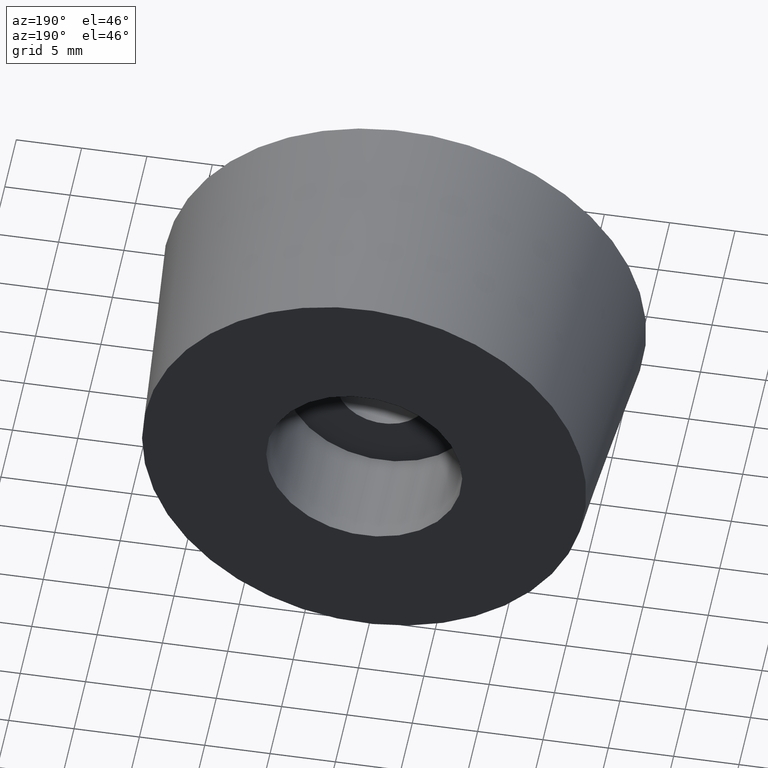
[diagram: clean part render]
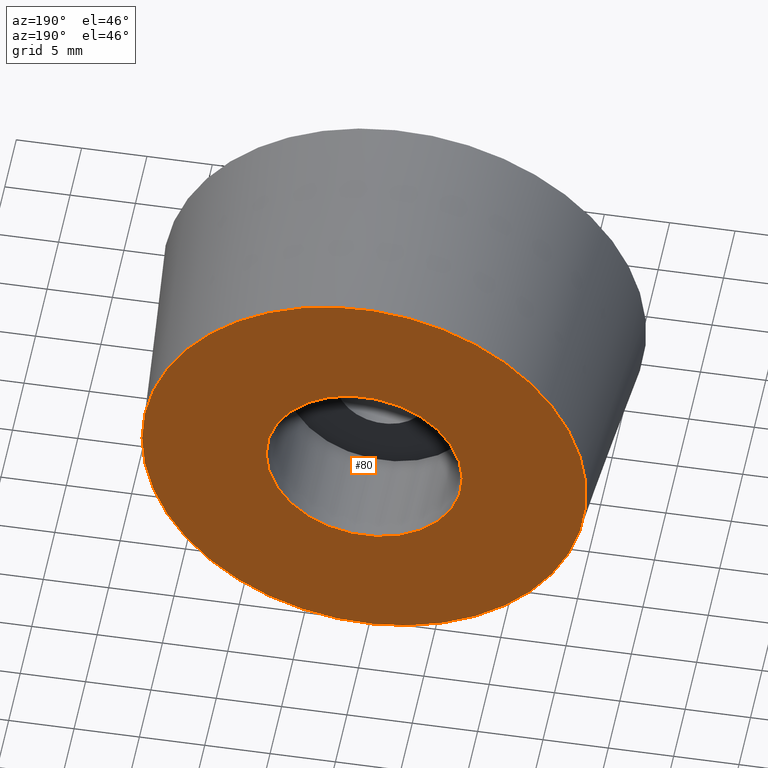
[diagram: same view with one face highlighted and labeled with its STEP entity id]
A machine part, auxiliary view. The second image highlights one B-rep face of the part: STEP entity #80.
In plain terms, the highlighted planar face has unit normal (0, -1, 0).
Its self-contained STEP definition (entity closure, byte-faithful):
#21=FACE_BOUND('',#38,.T.);
#27=FACE_OUTER_BOUND('',#37,.T.);
#37=EDGE_LOOP('',(#67));
#38=EDGE_LOOP('',(#68));
#44=CIRCLE('',#89,7.5);
#46=CIRCLE('',#94,17.);
#50=VERTEX_POINT('',#133);
#52=VERTEX_POINT('',#140);
#56=EDGE_CURVE('',#50,#50,#44,.T.);
#58=EDGE_CURVE('',#52,#52,#46,.T.);
#67=ORIENTED_EDGE('',*,*,#58,.F.);
#68=ORIENTED_EDGE('',*,*,#56,.T.);
#74=PLANE('',#93);
#80=ADVANCED_FACE('',(#27,#21),#74,.F.);
#89=AXIS2_PLACEMENT_3D('',#134,#108,#109);
#93=AXIS2_PLACEMENT_3D('',#139,#116,#117);
#94=AXIS2_PLACEMENT_3D('',#141,#118,#119);
#108=DIRECTION('center_axis',(0.,-1.,0.));
#109=DIRECTION('ref_axis',(-1.,0.,0.));
#116=DIRECTION('center_axis',(0.,-1.,0.));
#117=DIRECTION('ref_axis',(0.,0.,-1.));
#118=DIRECTION('center_axis',(0.,-1.,0.));
#119=DIRECTION('ref_axis',(1.,0.,0.));
#133=CARTESIAN_POINT('',(-7.5,17.5,0.));
#134=CARTESIAN_POINT('Origin',(0.,17.5,0.));
#139=CARTESIAN_POINT('Origin',(0.,17.5,0.));
#140=CARTESIAN_POINT('',(17.,17.5,0.));
#141=CARTESIAN_POINT('Origin',(0.,17.5,0.));